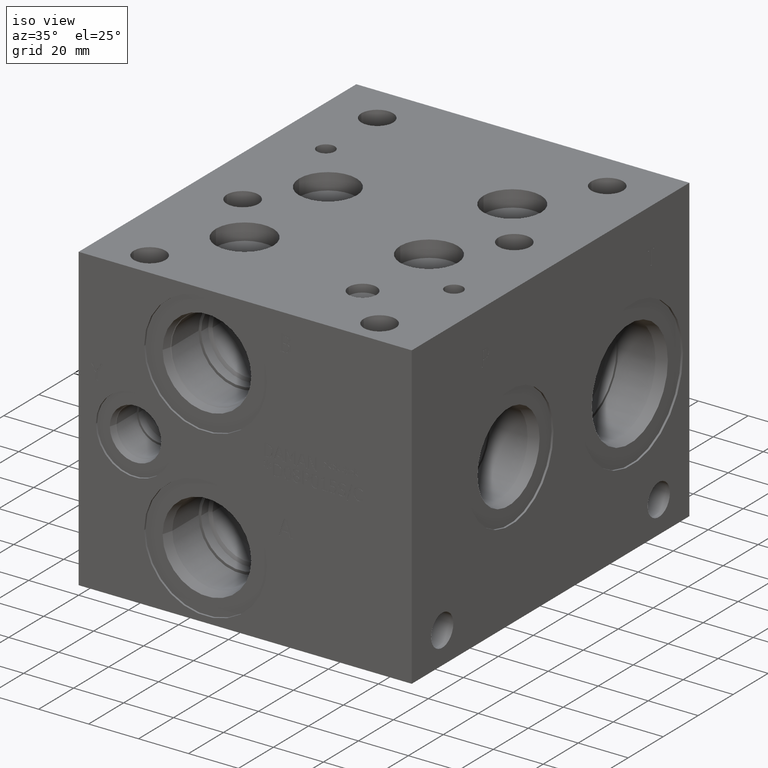
[diagram: clean part render]
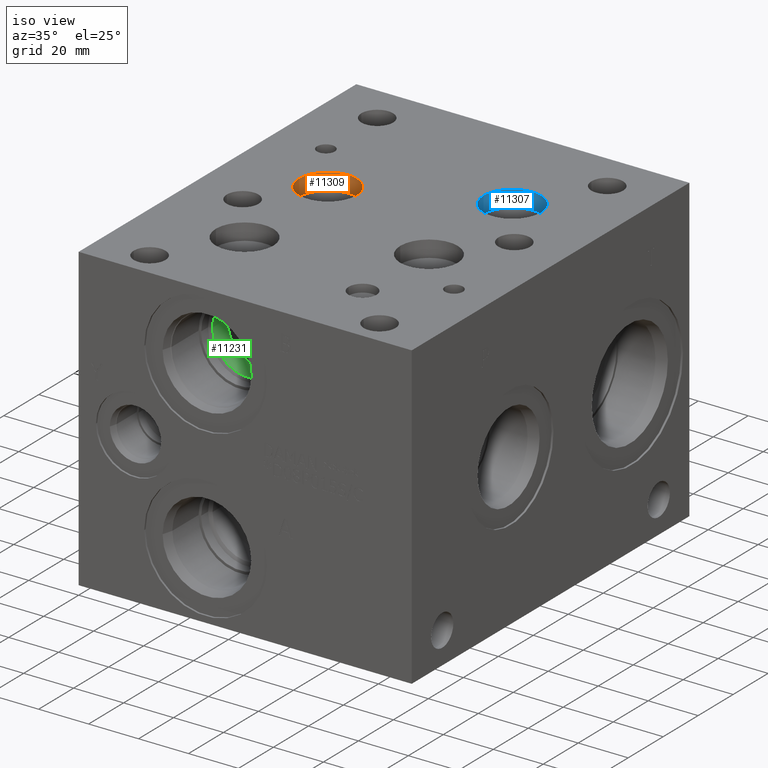
[diagram: same view with three faces highlighted in distinct colors, each labeled with its STEP entity id]
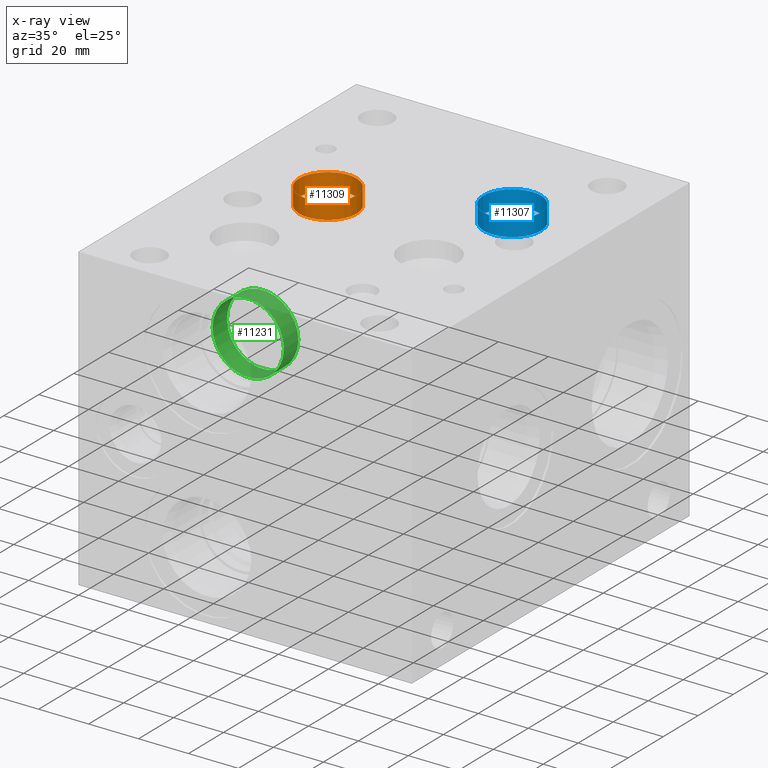
[diagram: x-ray of the same camera — body ghosted, the three highlighted faces saturated]
A machine part, iso view with three faces highlighted in distinct colors.
The next image is the same camera in x-ray (body ghosted, the three faces saturated) — at least one of them is partly hidden behind the body in this view.
Their STEP definitions:

[orange] entity #11309 — the highlighted cylindrical surface (bore or boss wall) has radius 11.5062 mm, axis along (0, 0, 1).
#121=CYLINDRICAL_SURFACE('',#11969,11.5062);
#337=CIRCLE('',#11967,11.5062);
#338=CIRCLE('',#11968,11.5062);
#339=CIRCLE('',#11970,11.5062);
#340=CIRCLE('',#11971,11.5062);
#1469=FACE_OUTER_BOUND('',#2129,.T.);
#2129=EDGE_LOOP('',(#9805,#9806,#9807,#9808,#9809,#9810));
#3182=LINE('',#19406,#4205);
#4205=VECTOR('',#14284,11.5062);
#5237=VERTEX_POINT('',#19395);
#5238=VERTEX_POINT('',#19396);
#5240=VERTEX_POINT('',#19402);
#5241=VERTEX_POINT('',#19403);
#6788=EDGE_CURVE('',#5237,#5238,#337,.T.);
#6790=EDGE_CURVE('',#5238,#5237,#338,.T.);
#6791=EDGE_CURVE('',#5240,#5241,#339,.T.);
#6792=EDGE_CURVE('',#5241,#5240,#340,.T.);
#6793=EDGE_CURVE('',#5241,#5238,#3182,.T.);
#9805=ORIENTED_EDGE('',*,*,#6791,.F.);
#9806=ORIENTED_EDGE('',*,*,#6792,.F.);
#9807=ORIENTED_EDGE('',*,*,#6793,.T.);
#9808=ORIENTED_EDGE('',*,*,#6788,.F.);
#9809=ORIENTED_EDGE('',*,*,#6790,.F.);
#9810=ORIENTED_EDGE('',*,*,#6793,.F.);
#11309=ADVANCED_FACE('',(#1469),#121,.F.);
#11967=AXIS2_PLACEMENT_3D('',#19397,#14273,#14274);
#11968=AXIS2_PLACEMENT_3D('',#19400,#14276,#14277);
#11969=AXIS2_PLACEMENT_3D('',#19401,#14278,#14279);
#11970=AXIS2_PLACEMENT_3D('',#19404,#14280,#14281);
#11971=AXIS2_PLACEMENT_3D('',#19405,#14282,#14283);
#14273=DIRECTION('center_axis',(0.,0.,1.));
#14274=DIRECTION('ref_axis',(1.,0.,0.));
#14276=DIRECTION('center_axis',(0.,0.,1.));
#14277=DIRECTION('ref_axis',(1.,0.,0.));
#14278=DIRECTION('center_axis',(0.,0.,1.));
#14279=DIRECTION('ref_axis',(1.,0.,0.));
#14280=DIRECTION('center_axis',(0.,0.,-1.));
#14281=DIRECTION('ref_axis',(1.,0.,0.));
#14282=DIRECTION('center_axis',(0.,0.,-1.));
#14283=DIRECTION('ref_axis',(1.,0.,0.));
#14284=DIRECTION('',(0.,0.,-1.));
#19395=CARTESIAN_POINT('',(49.6062,88.1126,114.00689));
#19396=CARTESIAN_POINT('',(26.5938,88.1126,114.00689));
#19397=CARTESIAN_POINT('Origin',(38.1,88.1126,114.00689));
#19400=CARTESIAN_POINT('Origin',(38.1,88.1126,114.00689));
#19401=CARTESIAN_POINT('Origin',(38.1,88.1126,117.328445));
#19402=CARTESIAN_POINT('',(49.6062,88.1126,120.65));
#19403=CARTESIAN_POINT('',(26.5938,88.1126,120.65));
#19404=CARTESIAN_POINT('Origin',(38.1,88.1126,120.65));
#19405=CARTESIAN_POINT('Origin',(38.1,88.1126,120.65));
#19406=CARTESIAN_POINT('',(26.5938,88.1126,117.328445));

[blue] entity #11307 — the highlighted cylindrical surface (bore or boss wall) has radius 11.5087 mm, axis along (0, 0, 1).
#120=CYLINDRICAL_SURFACE('',#11963,11.50874);
#333=CIRCLE('',#11961,11.50874);
#334=CIRCLE('',#11962,11.50874);
#335=CIRCLE('',#11964,11.50874);
#336=CIRCLE('',#11965,11.50874);
#1467=FACE_OUTER_BOUND('',#2127,.T.);
#2127=EDGE_LOOP('',(#9795,#9796,#9797,#9798,#9799,#9800));
#3180=LINE('',#19393,#4203);
#4203=VECTOR('',#14270,11.50874);
#5232=VERTEX_POINT('',#19382);
#5233=VERTEX_POINT('',#19383);
#5235=VERTEX_POINT('',#19389);
#5236=VERTEX_POINT('',#19390);
#6782=EDGE_CURVE('',#5232,#5233,#333,.T.);
#6784=EDGE_CURVE('',#5233,#5232,#334,.T.);
#6785=EDGE_CURVE('',#5235,#5236,#335,.T.);
#6786=EDGE_CURVE('',#5236,#5235,#336,.T.);
#6787=EDGE_CURVE('',#5236,#5233,#3180,.T.);
#9795=ORIENTED_EDGE('',*,*,#6785,.F.);
#9796=ORIENTED_EDGE('',*,*,#6786,.F.);
#9797=ORIENTED_EDGE('',*,*,#6787,.T.);
#9798=ORIENTED_EDGE('',*,*,#6782,.F.);
#9799=ORIENTED_EDGE('',*,*,#6784,.F.);
#9800=ORIENTED_EDGE('',*,*,#6787,.F.);
#11307=ADVANCED_FACE('',(#1467),#120,.F.);
#11961=AXIS2_PLACEMENT_3D('',#19384,#14259,#14260);
#11962=AXIS2_PLACEMENT_3D('',#19387,#14262,#14263);
#11963=AXIS2_PLACEMENT_3D('',#19388,#14264,#14265);
#11964=AXIS2_PLACEMENT_3D('',#19391,#14266,#14267);
#11965=AXIS2_PLACEMENT_3D('',#19392,#14268,#14269);
#14259=DIRECTION('center_axis',(0.,0.,1.));
#14260=DIRECTION('ref_axis',(1.,0.,0.));
#14262=DIRECTION('center_axis',(0.,0.,1.));
#14263=DIRECTION('ref_axis',(1.,0.,0.));
#14264=DIRECTION('center_axis',(0.,0.,1.));
#14265=DIRECTION('ref_axis',(1.,0.,0.));
#14266=DIRECTION('center_axis',(0.,0.,-1.));
#14267=DIRECTION('ref_axis',(1.,0.,0.));
#14268=DIRECTION('center_axis',(0.,0.,-1.));
#14269=DIRECTION('ref_axis',(1.,0.,0.));
#14270=DIRECTION('',(0.,0.,-1.));
#19382=CARTESIAN_POINT('',(106.75874,111.9124,114.00543));
#19383=CARTESIAN_POINT('',(83.74126,111.9124,114.00543));
#19384=CARTESIAN_POINT('Origin',(95.25,111.9124,114.00543));
#19387=CARTESIAN_POINT('Origin',(95.25,111.9124,114.00543));
#19388=CARTESIAN_POINT('Origin',(95.25,111.9124,117.327715));
#19389=CARTESIAN_POINT('',(106.75874,111.9124,120.65));
#19390=CARTESIAN_POINT('',(83.74126,111.9124,120.65));
#19391=CARTESIAN_POINT('Origin',(95.25,111.9124,120.65));
#19392=CARTESIAN_POINT('Origin',(95.25,111.9124,120.65));
#19393=CARTESIAN_POINT('',(83.74126,111.9124,117.327715));

[green] entity #11231 — the highlighted cylindrical surface (bore or boss wall) has radius 14.2875 mm, axis along (0, -1, 0).
#85=CYLINDRICAL_SURFACE('',#11776,14.2875);
#222=CIRCLE('',#11774,14.2875);
#223=CIRCLE('',#11775,14.2875);
#224=CIRCLE('',#11777,14.2875);
#1391=FACE_OUTER_BOUND('',#2037,.T.);
#2037=EDGE_LOOP('',(#9433,#9434,#9435,#9436,#9437));
#3118=LINE('',#19021,#4141);
#4141=VECTOR('',#13832,14.2875);
#5111=VERTEX_POINT('',#19012);
#5112=VERTEX_POINT('',#19013);
#5114=VERTEX_POINT('',#19019);
#6609=EDGE_CURVE('',#5111,#5112,#222,.T.);
#6611=EDGE_CURVE('',#5112,#5111,#223,.T.);
#6612=EDGE_CURVE('',#5114,#5114,#224,.T.);
#6613=EDGE_CURVE('',#5114,#5112,#3118,.T.);
#9433=ORIENTED_EDGE('',*,*,#6612,.F.);
#9434=ORIENTED_EDGE('',*,*,#6613,.T.);
#9435=ORIENTED_EDGE('',*,*,#6609,.F.);
#9436=ORIENTED_EDGE('',*,*,#6611,.F.);
#9437=ORIENTED_EDGE('',*,*,#6613,.F.);
#11231=ADVANCED_FACE('',(#1391),#85,.F.);
#11774=AXIS2_PLACEMENT_3D('',#19014,#13823,#13824);
#11775=AXIS2_PLACEMENT_3D('',#19017,#13826,#13827);
#11776=AXIS2_PLACEMENT_3D('',#19018,#13828,#13829);
#11777=AXIS2_PLACEMENT_3D('',#19020,#13830,#13831);
#13823=DIRECTION('center_axis',(0.,-1.,0.));
#13824=DIRECTION('ref_axis',(1.,0.,0.));
#13826=DIRECTION('center_axis',(0.,-1.,0.));
#13827=DIRECTION('ref_axis',(1.,0.,0.));
#13828=DIRECTION('center_axis',(0.,-1.,0.));
#13829=DIRECTION('ref_axis',(1.,0.,0.));
#13830=DIRECTION('center_axis',(0.,1.,0.));
#13831=DIRECTION('ref_axis',(1.,0.,0.));
#13832=DIRECTION('',(0.,1.,0.));
#19012=CARTESIAN_POINT('',(65.0875,32.64806,93.6752));
#19013=CARTESIAN_POINT('',(36.5125,32.64806,93.6752));
#19014=CARTESIAN_POINT('Origin',(50.8,32.64806,93.6752));
#19017=CARTESIAN_POINT('Origin',(50.8,32.64806,93.6752));
#19018=CARTESIAN_POINT('Origin',(50.8,16.32403,93.6752));
#19019=CARTESIAN_POINT('',(36.5125,24.3991668561624,93.6752));
#19020=CARTESIAN_POINT('Origin',(50.8,24.3991668561624,93.6752));
#19021=CARTESIAN_POINT('',(36.5125,16.32403,93.6752));